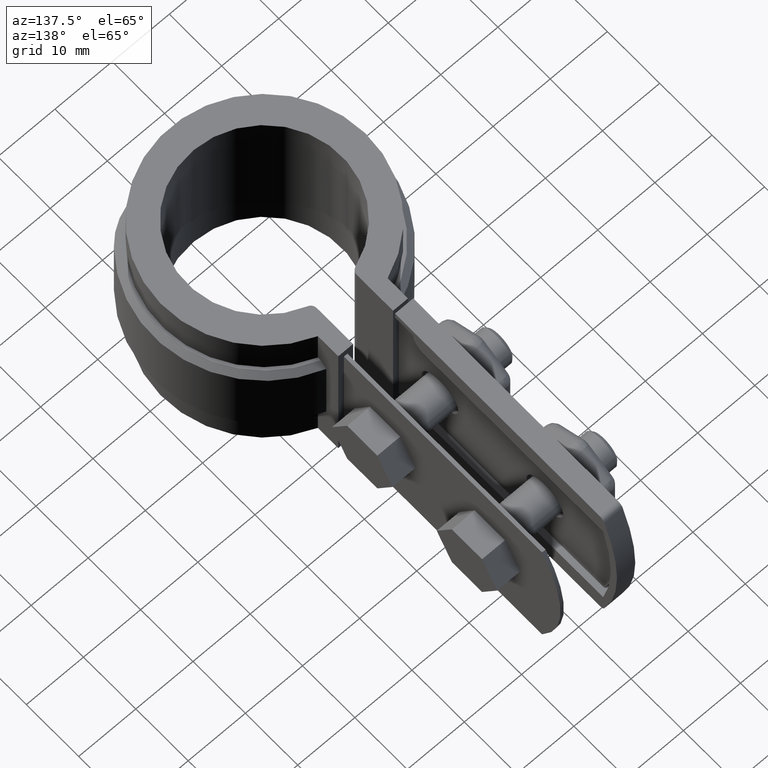
[diagram: clean part render]
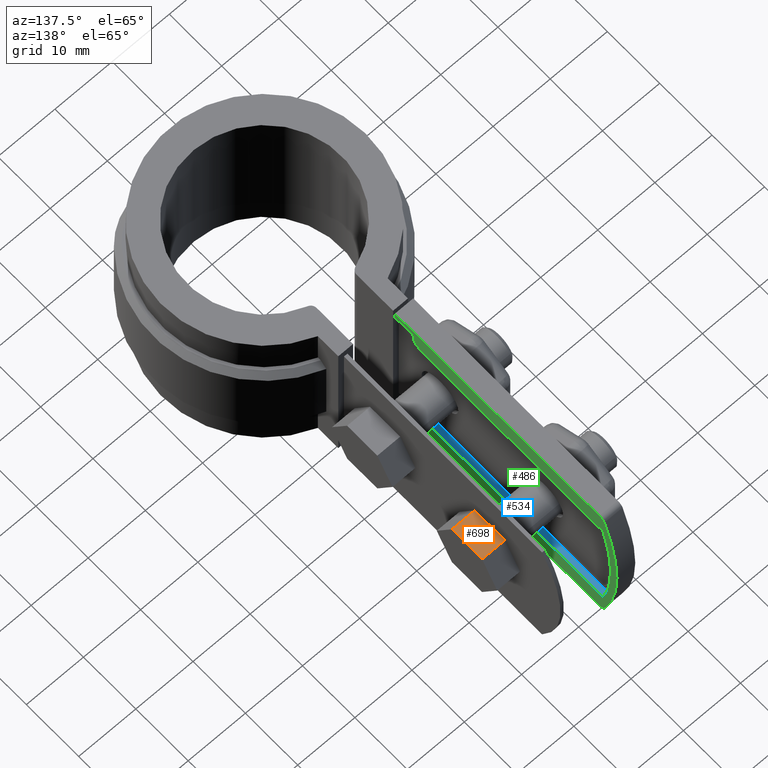
[diagram: same view with three faces highlighted in distinct colors, each labeled with its STEP entity id]
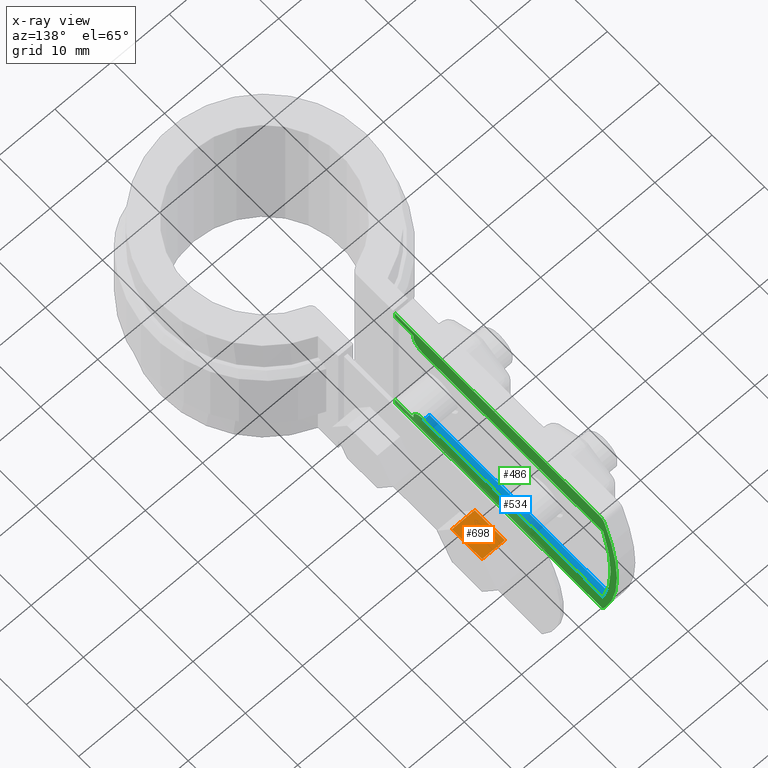
[diagram: x-ray of the same camera — body ghosted, the three highlighted faces saturated]
A machine part, auxiliary view with three faces highlighted in distinct colors.
The next image is the same camera in x-ray (body ghosted, the three faces saturated) — at least one of them is partly hidden behind the body in this view.
Their STEP definitions:

[orange] entity #698 — the highlighted planar face has unit normal (-0, 0, -1).
#698 = ADVANCED_FACE( '', ( #1424 ), #1425, .F. );
#1424 = FACE_OUTER_BOUND( '', #2800, .T. );
#1425 = PLANE( '', #2801 );
#2800 = EDGE_LOOP( '', ( #6179, #6180, #6181, #6182 ) );
#2801 = AXIS2_PLACEMENT_3D( '', #6183, #6184, #6185 );
#6179 = ORIENTED_EDGE( '', *, *, #7091, .T. );
#6180 = ORIENTED_EDGE( '', *, *, #7107, .F. );
#6181 = ORIENTED_EDGE( '', *, *, #7105, .F. );
#6182 = ORIENTED_EDGE( '', *, *, #7108, .T. );
#6183 = CARTESIAN_POINT( '', ( 9.09999999999993, 51.4910358935761, -7.49999999999982 ) );
#6184 = DIRECTION( '', ( -5.22024357439871E-054, 6.60582699651976E-015, -1.00000000000000 ) );
#6185 = DIRECTION( '', ( 9.04172709874370E-054, 1.00000000000000, 6.60582699651976E-015 ) );
#7091 = EDGE_CURVE( '', #8591, #8589, #8592, .T. );
#7105 = EDGE_CURVE( '', #8614, #8616, #8617, .T. );
#7107 = EDGE_CURVE( '', #8616, #8589, #8619, .T. );
#7108 = EDGE_CURVE( '', #8614, #8591, #8620, .T. );
#8589 = VERTEX_POINT( '', #12122 );
#8591 = VERTEX_POINT( '', #12125 );
#8592 = LINE( '', #12126, #12127 );
#8614 = VERTEX_POINT( '', #12158 );
#8616 = VERTEX_POINT( '', #12161 );
#8617 = LINE( '', #12162, #12163 );
#8619 = LINE( '', #12166, #12167 );
#8620 = LINE( '', #12168, #12169 );
#12122 = CARTESIAN_POINT( '', ( 5.09999999999993, 45.7175332016799, -7.49999999999978 ) );
#12125 = CARTESIAN_POINT( '', ( 5.09999999999993, 51.4910358935761, -7.49999999999982 ) );
#12126 = CARTESIAN_POINT( '', ( 5.09999999999993, 51.4910358935761, -7.49999999999982 ) );
#12127 = VECTOR( '', #13377, 999.999999999996 );
#12158 = CARTESIAN_POINT( '', ( 9.09999999999993, 51.4910358935761, -7.49999999999982 ) );
#12161 = CARTESIAN_POINT( '', ( 9.09999999999993, 45.7175332016799, -7.49999999999978 ) );
#12162 = CARTESIAN_POINT( '', ( 9.09999999999993, 51.4910358935761, -7.49999999999982 ) );
#12163 = VECTOR( '', #13397, 999.999999999996 );
#12166 = CARTESIAN_POINT( '', ( 9.09999999999993, 45.7175332016799, -7.49999999999978 ) );
#12167 = VECTOR( '', #13399, 1000.00000000000 );
#12168 = CARTESIAN_POINT( '', ( 9.09999999999993, 51.4910358935761, -7.49999999999982 ) );
#12169 = VECTOR( '', #13400, 1000.00000000000 );
#13377 = DIRECTION( '', ( -9.04172709874363E-054, -1.00000000000000, 6.88338275267600E-015 ) );
#13397 = DIRECTION( '', ( -9.04172709874363E-054, -1.00000000000000, 6.88338275267600E-015 ) );
#13399 = DIRECTION( '', ( -1.00000000000000, 9.04172709874367E-054, 5.22024357439877E-054 ) );
#13400 = DIRECTION( '', ( -1.00000000000000, 9.04172709874367E-054, 5.22024357439877E-054 ) );

[blue] entity #534 — the highlighted planar face has unit normal (-0, -0, 1).
#534 = ADVANCED_FACE( '', ( #1079 ), #1080, .T. );
#1079 = FACE_OUTER_BOUND( '', #2323, .T. );
#1080 = PLANE( '', #2324 );
#2323 = EDGE_LOOP( '', ( #5021, #5022, #5023, #5024 ) );
#2324 = AXIS2_PLACEMENT_3D( '', #5025, #5026, #5027 );
#5021 = ORIENTED_EDGE( '', *, *, #6746, .T. );
#5022 = ORIENTED_EDGE( '', *, *, #6853, .T. );
#5023 = ORIENTED_EDGE( '', *, *, #6854, .F. );
#5024 = ORIENTED_EDGE( '', *, *, #6852, .F. );
#5025 = CARTESIAN_POINT( '', ( -3.50000000000003, 26.6042845476544, -22.5000000000061 ) );
#5026 = DIRECTION( '', ( -3.71199524710576E-016, -1.97370347590307E-018, 1.00000000000000 ) );
#5027 = DIRECTION( '', ( -6.63400231144376E-016, -1.00000000000000, -1.97370347590331E-018 ) );
#6746 = EDGE_CURVE( '', #8086, #8084, #8087, .T. );
#6852 = EDGE_CURVE( '', #8086, #8248, #8250, .T. );
#6853 = EDGE_CURVE( '', #8084, #8251, #8252, .T. );
#6854 = EDGE_CURVE( '', #8248, #8251, #8253, .T. );
#8084 = VERTEX_POINT( '', #11278 );
#8086 = VERTEX_POINT( '', #11280 );
#8087 = LINE( '', #11281, #11282 );
#8248 = VERTEX_POINT( '', #11515 );
#8250 = LINE( '', #11517, #11518 );
#8251 = VERTEX_POINT( '', #11519 );
#8252 = LINE( '', #11520, #11521 );
#8253 = LINE( '', #11522, #11523 );
#11278 = CARTESIAN_POINT( '', ( -3.50000000000001, 60.8539512126741, -22.5000000000062 ) );
#11280 = CARTESIAN_POINT( '', ( -3.50000000000003, 26.6042845476544, -22.5000000000061 ) );
#11281 = CARTESIAN_POINT( '', ( -3.50000000000003, 26.6042845476544, -22.5000000000061 ) );
#11282 = VECTOR( '', #12854, 999.999999999991 );
#11515 = CARTESIAN_POINT( '', ( -4.50000000000001, 26.6042845476544, -22.5000000000061 ) );
#11517 = CARTESIAN_POINT( '', ( -3.50000000000003, 26.6042845476544, -22.5000000000061 ) );
#11518 = VECTOR( '', #13026, 999.999999999991 );
#11519 = CARTESIAN_POINT( '', ( -4.49999999999999, 60.8539512126741, -22.5000000000062 ) );
#11520 = CARTESIAN_POINT( '', ( -3.50000000000001, 60.8539512126741, -22.5000000000062 ) );
#11521 = VECTOR( '', #13027, 999.999999999992 );
#11522 = CARTESIAN_POINT( '', ( -4.50000000000001, 26.6042845476544, -22.5000000000061 ) );
#11523 = VECTOR( '', #13028, 999.999999999991 );
#12854 = DIRECTION( '', ( 6.66766614912043E-016, 1.00000000000000, 1.97370347591000E-018 ) );
#13026 = DIRECTION( '', ( -1.00000000000000, 6.63400231144376E-016, -3.71199524710577E-016 ) );
#13027 = DIRECTION( '', ( -1.00000000000000, 6.40803553505438E-016, -3.52801195032758E-016 ) );
#13028 = DIRECTION( '', ( 6.66766614912043E-016, 1.00000000000000, 1.97370347591000E-018 ) );

[green] entity #486 — the highlighted planar face has unit normal (1, -0, 0).
#486 = ADVANCED_FACE( '', ( #979 ), #980, .T. );
#979 = FACE_OUTER_BOUND( '', #2091, .T. );
#980 = PLANE( '', #2092 );
#2091 = EDGE_LOOP( '', ( #4666, #4667, #4668, #4669, #4670, #4671, #4672, #4673, #4674, #4675, #4676, #4677, #4678, #4679, #4680, #4681 ) );
#2092 = AXIS2_PLACEMENT_3D( '', #4682, #4683, #4684 );
#4666 = ORIENTED_EDGE( '', *, *, #6744, .T. );
#4667 = ORIENTED_EDGE( '', *, *, #6745, .T. );
#4668 = ORIENTED_EDGE( '', *, *, #6746, .F. );
#4669 = ORIENTED_EDGE( '', *, *, #6747, .F. );
#4670 = ORIENTED_EDGE( '', *, *, #6748, .F. );
#4671 = ORIENTED_EDGE( '', *, *, #6749, .T. );
#4672 = ORIENTED_EDGE( '', *, *, #6750, .T. );
#4673 = ORIENTED_EDGE( '', *, *, #6751, .T. );
#4674 = ORIENTED_EDGE( '', *, *, #6752, .T. );
#4675 = ORIENTED_EDGE( '', *, *, #6753, .F. );
#4676 = ORIENTED_EDGE( '', *, *, #6754, .T. );
#4677 = ORIENTED_EDGE( '', *, *, #6755, .T. );
#4678 = ORIENTED_EDGE( '', *, *, #6756, .T. );
#4679 = ORIENTED_EDGE( '', *, *, #6757, .T. );
#4680 = ORIENTED_EDGE( '', *, *, #6758, .T. );
#4681 = ORIENTED_EDGE( '', *, *, #6759, .T. );
#4682 = CARTESIAN_POINT( '', ( -3.50000000000004, 27.1042845476544, -12.5000000000061 ) );
#4683 = DIRECTION( '', ( 1.00000000000000, -6.82234018655989E-016, 3.52801195032757E-016 ) );
#4684 = DIRECTION( '', ( 7.65161862187432E-016, 0.924758059784177, -0.380555555555564 ) );
#6744 = EDGE_CURVE( '', #8081, #8082, #8083, .T. );
#6745 = EDGE_CURVE( '', #8082, #8084, #8085, .T. );
#6746 = EDGE_CURVE( '', #8086, #8084, #8087, .T. );
#6747 = EDGE_CURVE( '', #8088, #8086, #8089, .T. );
#6748 = EDGE_CURVE( '', #8090, #8088, #8091, .T. );
#6749 = EDGE_CURVE( '', #8090, #8092, #8093, .T. );
#6750 = EDGE_CURVE( '', #8092, #8094, #8095, .T. );
#6751 = EDGE_CURVE( '', #8094, #8096, #8097, .T. );
#6752 = EDGE_CURVE( '', #8096, #8098, #8099, .T. );
#6753 = EDGE_CURVE( '', #8100, #8098, #8101, .T. );
#6754 = EDGE_CURVE( '', #8100, #8102, #8103, .T. );
#6755 = EDGE_CURVE( '', #8102, #8104, #8105, .T. );
#6756 = EDGE_CURVE( '', #8104, #8106, #8107, .T. );
#6757 = EDGE_CURVE( '', #8106, #8108, #8109, .T. );
#6758 = EDGE_CURVE( '', #8108, #8110, #8111, .T. );
#6759 = EDGE_CURVE( '', #8110, #8081, #8112, .T. );
#8081 = VERTEX_POINT( '', #11274 );
#8082 = VERTEX_POINT( '', #11275 );
#8083 = LINE( '', #11276, #11277 );
#8084 = VERTEX_POINT( '', #11278 );
#8085 = CIRCLE( '', #11279, 35.2000000000000 );
#8086 = VERTEX_POINT( '', #11280 );
#8087 = LINE( '', #11281, #11282 );
#8088 = VERTEX_POINT( '', #11283 );
#8089 = CIRCLE( '', #11284, 1.99999999999995 );
#8090 = VERTEX_POINT( '', #11285 );
#8091 = LINE( '', #11286, #11287 );
#8092 = VERTEX_POINT( '', #11288 );
#8093 = LINE( '', #11289, #11290 );
#8094 = VERTEX_POINT( '', #11291 );
#8095 = LINE( '', #11292, #11293 );
#8096 = VERTEX_POINT( '', #11294 );
#8097 = LINE( '', #11295, #11296 );
#8098 = VERTEX_POINT( '', #11297 );
#8099 = CIRCLE( '', #11298, 0.999999999999974 );
#8100 = VERTEX_POINT( '', #11299 );
#8101 = CIRCLE( '', #11300, 36.4000000000000 );
#8102 = VERTEX_POINT( '', #11301 );
#8103 = CIRCLE( '', #11302, 0.999999999999974 );
#8104 = VERTEX_POINT( '', #11303 );
#8105 = LINE( '', #11304, #11305 );
#8106 = VERTEX_POINT( '', #11306 );
#8107 = LINE( '', #11307, #11308 );
#8108 = VERTEX_POINT( '', #11309 );
#8109 = LINE( '', #11310, #11311 );
#8110 = VERTEX_POINT( '', #11312 );
#8111 = LINE( '', #11313, #11314 );
#8112 = CIRCLE( '', #11315, 1.99999999999995 );
#11274 = CARTESIAN_POINT( '', ( -3.50000000000004, 26.6042845476544, -2.50000000000614 ) );
#11275 = CARTESIAN_POINT( '', ( -3.50000000000002, 60.8539512126741, -2.50000000000614 ) );
#11276 = CARTESIAN_POINT( '', ( -3.50000000000004, 26.6042845476544, -2.50000000000614 ) );
#11277 = VECTOR( '', #12850, 999.999999999991 );
#11278 = CARTESIAN_POINT( '', ( -3.50000000000001, 60.8539512126741, -22.5000000000062 ) );
#11279 = AXIS2_PLACEMENT_3D( '', #12851, #12852, #12853 );
#11280 = CARTESIAN_POINT( '', ( -3.50000000000003, 26.6042845476544, -22.5000000000061 ) );
#11281 = CARTESIAN_POINT( '', ( -3.50000000000003, 26.6042845476544, -22.5000000000061 ) );
#11282 = VECTOR( '', #12854, 999.999999999991 );
#11283 = CARTESIAN_POINT( '', ( -3.50000000000003, 24.6042845476545, -24.5000000000061 ) );
#11284 = AXIS2_PLACEMENT_3D( '', #12855, #12856, #12857 );
#11285 = CARTESIAN_POINT( '', ( -3.50000000000003, 24.6042845476545, -25.0000000000061 ) );
#11286 = CARTESIAN_POINT( '', ( -3.50000000000003, 24.6042845476545, -25.0000000000062 ) );
#11287 = VECTOR( '', #12858, 1000.00000000002 );
#11288 = CARTESIAN_POINT( '', ( -3.50000000000004, 21.1042845476546, -25.0000000000061 ) );
#11289 = CARTESIAN_POINT( '', ( -3.50000000000001, 59.7960266242086, -25.0000000000061 ) );
#11290 = VECTOR( '', #12859, 999.999999999991 );
#11291 = CARTESIAN_POINT( '', ( -3.50000000000004, 21.1042845476546, -26.2000000000061 ) );
#11292 = CARTESIAN_POINT( '', ( -3.50000000000004, 21.1042845476546, -25.0000000000061 ) );
#11293 = VECTOR( '', #12860, 1000.00000000002 );
#11294 = CARTESIAN_POINT( '', ( -3.50000000000001, 60.1477407833442, -26.2000000000061 ) );
#11295 = CARTESIAN_POINT( '', ( -3.50000000000004, 21.1042845476546, -26.2000000000061 ) );
#11296 = VECTOR( '', #12861, 999.999999999991 );
#11297 = CARTESIAN_POINT( '', ( -3.50000000000001, 61.0811717504540, -25.5587570621530 ) );
#11298 = AXIS2_PLACEMENT_3D( '', #12862, #12863, #12864 );
#11299 = CARTESIAN_POINT( '', ( -3.50000000000002, 61.0811717504540, 0.558757062140746 ) );
#11300 = AXIS2_PLACEMENT_3D( '', #12865, #12866, #12867 );
#11301 = CARTESIAN_POINT( '', ( -3.50000000000002, 60.1477407833442, 1.19999999999386 ) );
#11302 = AXIS2_PLACEMENT_3D( '', #12868, #12869, #12870 );
#11303 = CARTESIAN_POINT( '', ( -3.50000000000005, 21.1042845476546, 1.19999999999386 ) );
#11304 = CARTESIAN_POINT( '', ( -3.50000000000002, 60.3955746998841, 1.19999999999386 ) );
#11305 = VECTOR( '', #12871, 999.999999999991 );
#11306 = CARTESIAN_POINT( '', ( -3.50000000000005, 21.1042845476546, -6.13737775367373E-012 ) );
#11307 = CARTESIAN_POINT( '', ( -3.50000000000005, 21.1042845476546, 1.19999999999386 ) );
#11308 = VECTOR( '', #12872, 1000.00000000002 );
#11309 = CARTESIAN_POINT( '', ( -3.50000000000004, 24.6042845476545, -6.14477371410630E-012 ) );
#11310 = CARTESIAN_POINT( '', ( -3.50000000000005, 21.1042845476546, -6.13390830672178E-012 ) );
#11311 = VECTOR( '', #12873, 999.999999999991 );
#11312 = CARTESIAN_POINT( '', ( -3.50000000000004, 24.6042845476545, -0.500000000006136 ) );
#11313 = CARTESIAN_POINT( '', ( -3.50000000000004, 24.6042845476545, -6.14477371410630E-012 ) );
#11314 = VECTOR( '', #12874, 1000.00000000002 );
#11315 = AXIS2_PLACEMENT_3D( '', #12875, #12876, #12877 );
#12850 = DIRECTION( '', ( 6.66766614912043E-016, 1.00000000000000, 1.97370347591000E-018 ) );
#12851 = CARTESIAN_POINT( '', ( -3.50000000000004, 27.1042845476544, -12.5000000000061 ) );
#12852 = DIRECTION( '', ( -1.00000000000000, 6.65444511971018E-016, -3.52801195032758E-016 ) );
#12853 = DIRECTION( '', ( -3.52801195032758E-016, 1.43114686768864E-017, 1.00000000000000 ) );
#12854 = DIRECTION( '', ( 6.66766614912043E-016, 1.00000000000000, 1.97370347591000E-018 ) );
#12855 = CARTESIAN_POINT( '', ( -3.50000000000003, 26.6042845476544, -24.5000000000061 ) );
#12856 = DIRECTION( '', ( -1.00000000000000, 6.63400231144376E-016, -3.71199524710577E-016 ) );
#12857 = DIRECTION( '', ( -6.63400231144376E-016, -1.00000000000000, 2.42032289536765E-016 ) );
#12858 = DIRECTION( '', ( -3.52801195032757E-016, 2.42032289536759E-016, 1.00000000000000 ) );
#12859 = DIRECTION( '', ( -6.66766614912043E-016, -1.00000000000000, 6.98226199081396E-017 ) );
#12860 = DIRECTION( '', ( 3.52801195032757E-016, -2.36356073601912E-016, -1.00000000000000 ) );
#12861 = DIRECTION( '', ( 6.66766614912043E-016, 1.00000000000000, -6.98226199081396E-017 ) );
#12862 = CARTESIAN_POINT( '', ( -3.50000000000001, 60.1477407833442, -25.2000000000061 ) );
#12863 = DIRECTION( '', ( 1.00000000000000, -6.82234018655989E-016, 3.52801195032757E-016 ) );
#12864 = DIRECTION( '', ( 6.82234018655989E-016, 1.00000000000000, -1.25333771139399E-016 ) );
#12865 = CARTESIAN_POINT( '', ( -3.50000000000004, 27.1042845476544, -12.5000000000061 ) );
#12866 = DIRECTION( '', ( -1.00000000000000, 6.97454658812782E-016, -3.52168329192299E-016 ) );
#12867 = DIRECTION( '', ( -3.52168329192300E-016, -9.67108337856263E-017, 1.00000000000000 ) );
#12868 = CARTESIAN_POINT( '', ( -3.50000000000002, 60.1477407833442, 0.199999999993857 ) );
#12869 = DIRECTION( '', ( 1.00000000000000, -6.82234018655989E-016, 3.52801195032757E-016 ) );
#12870 = DIRECTION( '', ( 6.82234018655989E-016, 1.00000000000000, -1.25333771139399E-016 ) );
#12871 = DIRECTION( '', ( -6.66766614912043E-016, -1.00000000000000, 6.98226199081396E-017 ) );
#12872 = DIRECTION( '', ( 3.52801195032757E-016, -2.36356073601912E-016, -1.00000000000000 ) );
#12873 = DIRECTION( '', ( 6.66766614912043E-016, 1.00000000000000, -6.98226199081396E-017 ) );
#12874 = DIRECTION( '', ( 3.52801195032757E-016, -2.42032289536759E-016, -1.00000000000000 ) );
#12875 = CARTESIAN_POINT( '', ( -3.50000000000004, 26.6042845476544, -0.500000000006140 ) );
#12876 = DIRECTION( '', ( 1.00000000000000, -6.63400231144376E-016, 3.34402865354938E-016 ) );
#12877 = DIRECTION( '', ( -6.63400231144376E-016, -1.00000000000000, 3.50452506785319E-016 ) );